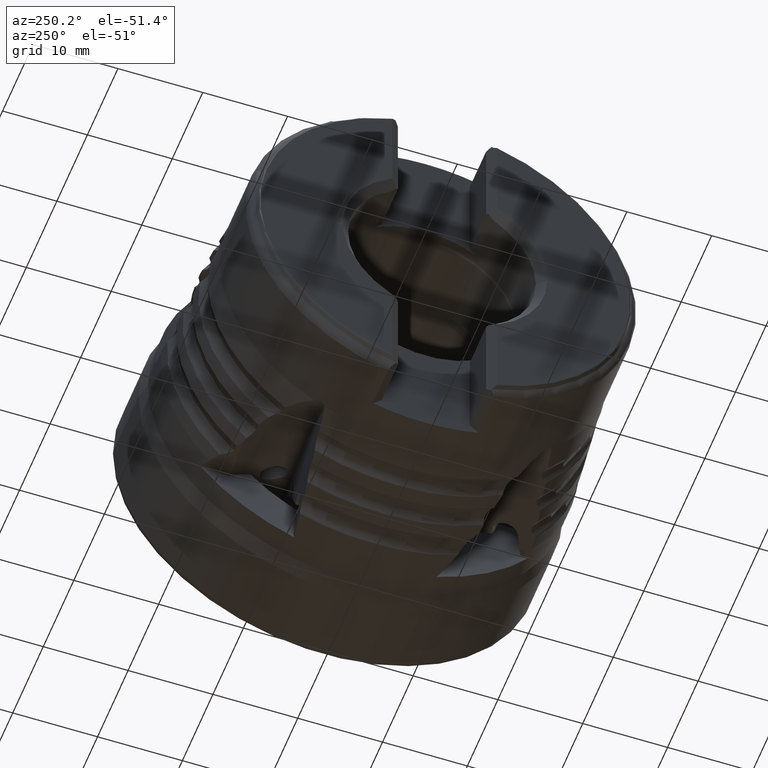
[diagram: clean part render]
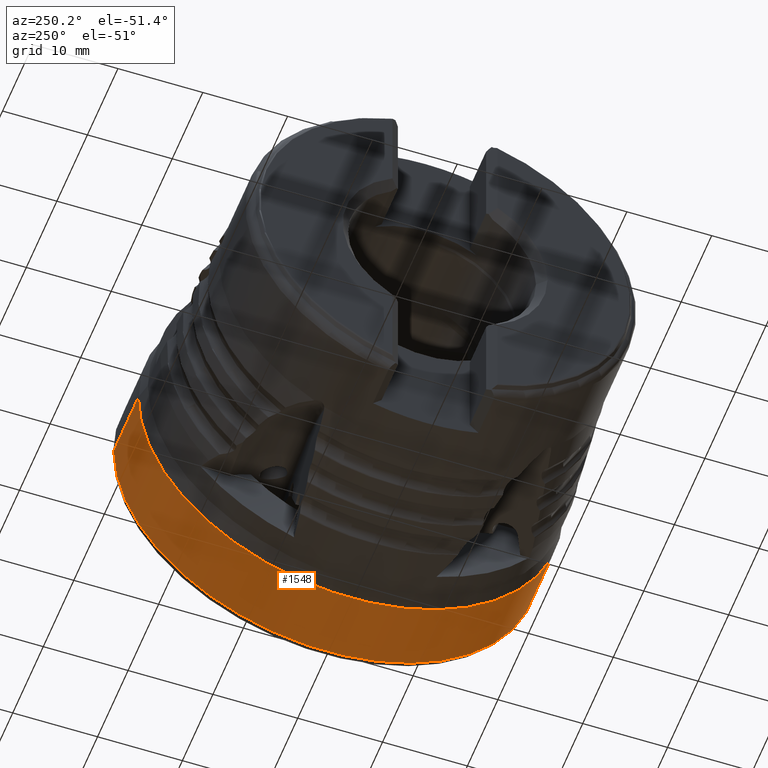
[diagram: same view with one face highlighted and labeled with its STEP entity id]
A machine part, auxiliary view. The second image highlights one B-rep face of the part: STEP entity #1548.
In plain terms, the highlighted cylindrical surface (partial cylindrical patch) has radius 25 mm, axis along (1, 0, -0).
Its self-contained STEP definition (entity closure, byte-faithful):
#115 = AXIS2_PLACEMENT_3D ( 'NONE', #9087, #9093, #9094 ) ;
#117 = AXIS2_PLACEMENT_3D ( 'NONE', #9138, #9143, #9144 ) ;
#200 = DIRECTION ( 'NONE',  ( 1.000000000000000000, 1.231745265854573400E-016, -0.0000000000000000000 ) ) ;
#213 = CARTESIAN_POINT ( 'NONE',  ( 6.546655774187063200, -25.00000000000000000, 3.061616997868383000E-015 ) ) ;
#1548 = ADVANCED_FACE ( 'NONE', ( #7849 ), #7851, .T. ) ;
#2482 = EDGE_CURVE ( 'NONE', #11808, #11563, #9776, .T. ) ;
#2654 = EDGE_CURVE ( 'NONE', #11809, #11564, #9914, .T. ) ;
#2768 = AXIS2_PLACEMENT_3D ( 'NONE', #11433, #11425, #11397 ) ;
#5534 = CARTESIAN_POINT ( 'NONE',  ( 6.546655774187057000, 25.00000000000000000, 0.0000000000000000000 ) ) ;
#5535 = DIRECTION ( 'NONE',  ( 1.000000000000000000, 1.231745265854573400E-016, -0.0000000000000000000 ) ) ;
#7561 = ORIENTED_EDGE ( 'NONE', *, *, #2482, .F. ) ;
#7562 = ORIENTED_EDGE ( 'NONE', *, *, #11197, .T. ) ;
#7563 = ORIENTED_EDGE ( 'NONE', *, *, #2654, .T. ) ;
#7564 = ORIENTED_EDGE ( 'NONE', *, *, #10669, .F. ) ;
#7849 = FACE_OUTER_BOUND ( 'NONE', #13004, .T. ) ;
#7851 = CYLINDRICAL_SURFACE ( 'NONE', #2768, 25.00000000000000000 ) ;
#9087 = CARTESIAN_POINT ( 'NONE',  ( 0.8393426536052973600, -7.029955917026278700E-016, 0.0000000000000000000 ) ) ;
#9093 = DIRECTION ( 'NONE',  ( 1.000000000000000000, 1.231745265854573400E-016, -0.0000000000000000000 ) ) ;
#9094 = DIRECTION ( 'NONE',  ( -1.214306433183765200E-016, 1.000000000000000000, 0.0000000000000000000 ) ) ;
#9138 = CARTESIAN_POINT ( 'NONE',  ( -7.222638780794269100, -1.696026338225541000E-015, 0.0000000000000000000 ) ) ;
#9143 = DIRECTION ( 'NONE',  ( 1.000000000000000000, 1.231745265854573400E-016, -0.0000000000000000000 ) ) ;
#9144 = DIRECTION ( 'NONE',  ( -1.387778780781445900E-016, 1.000000000000000000, 0.0000000000000000000 ) ) ;
#9243 = CARTESIAN_POINT ( 'NONE',  ( 0.8393426536053003600, -24.99999999999999600, 3.061616997868382600E-015 ) ) ;
#9244 = CARTESIAN_POINT ( 'NONE',  ( 0.8393426536052943600, 24.99999999999999600, 0.0000000000000000000 ) ) ;
#9452 = CARTESIAN_POINT ( 'NONE',  ( -7.222638780794266500, -24.99999999999999600, 3.061616997868382600E-015 ) ) ;
#9453 = CARTESIAN_POINT ( 'NONE',  ( -7.222638780794272700, 24.99999999999999600, 0.0000000000000000000 ) ) ;
#9771 = VECTOR ( 'NONE', #200, 1000.000000000000000 ) ;
#9776 = LINE ( 'NONE', #213, #9771 ) ;
#9914 = LINE ( 'NONE', #5534, #9918 ) ;
#9918 = VECTOR ( 'NONE', #5535, 1000.000000000000000 ) ;
#10526 = CIRCLE ( 'NONE', #115, 24.99999999999999600 ) ;
#10541 = CIRCLE ( 'NONE', #117, 24.99999999999999600 ) ;
#10669 = EDGE_CURVE ( 'NONE', #11563, #11564, #10526, .T. ) ;
#11197 = EDGE_CURVE ( 'NONE', #11808, #11809, #10541, .T. ) ;
#11397 = DIRECTION ( 'NONE',  ( -1.387778780781445700E-016, 1.000000000000000000, 0.0000000000000000000 ) ) ;
#11425 = DIRECTION ( 'NONE',  ( 1.000000000000000000, 1.231745265854573400E-016, -0.0000000000000000000 ) ) ;
#11433 = CARTESIAN_POINT ( 'NONE',  ( 6.546655774187060600, 0.0000000000000000000, 0.0000000000000000000 ) ) ;
#11563 = VERTEX_POINT ( 'NONE', #9243 ) ;
#11564 = VERTEX_POINT ( 'NONE', #9244 ) ;
#11808 = VERTEX_POINT ( 'NONE', #9452 ) ;
#11809 = VERTEX_POINT ( 'NONE', #9453 ) ;
#13004 = EDGE_LOOP ( 'NONE', ( #7561, #7562, #7563, #7564 ) ) ;